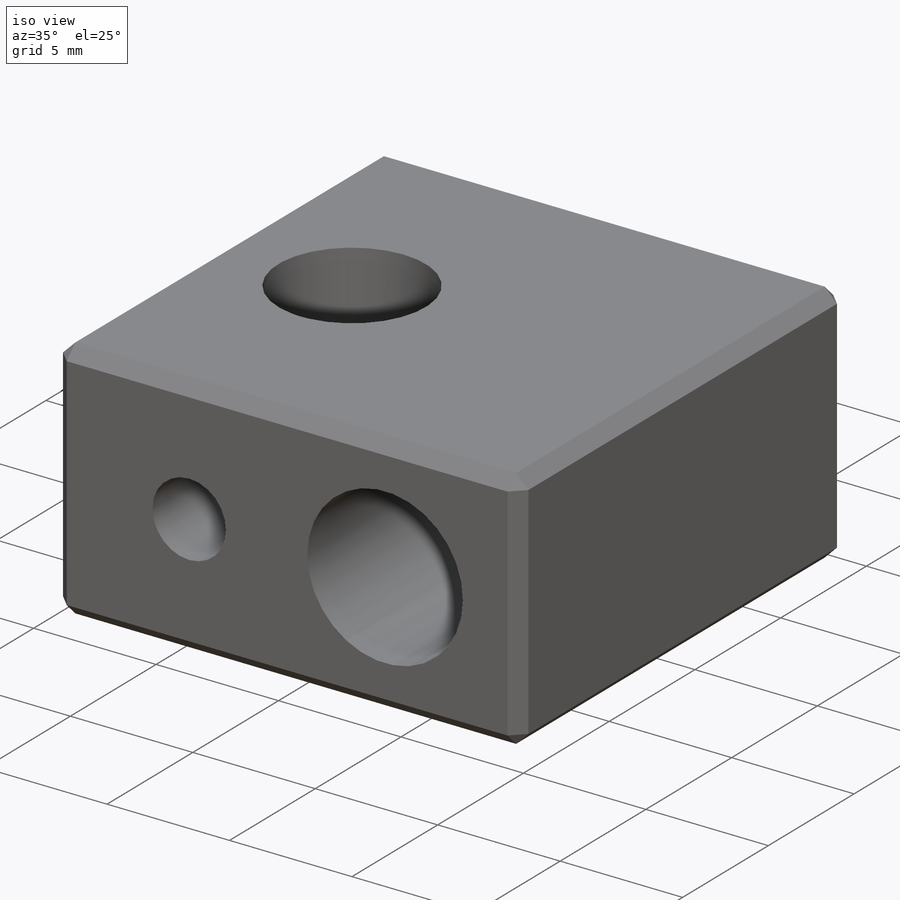
[diagram: iso view]
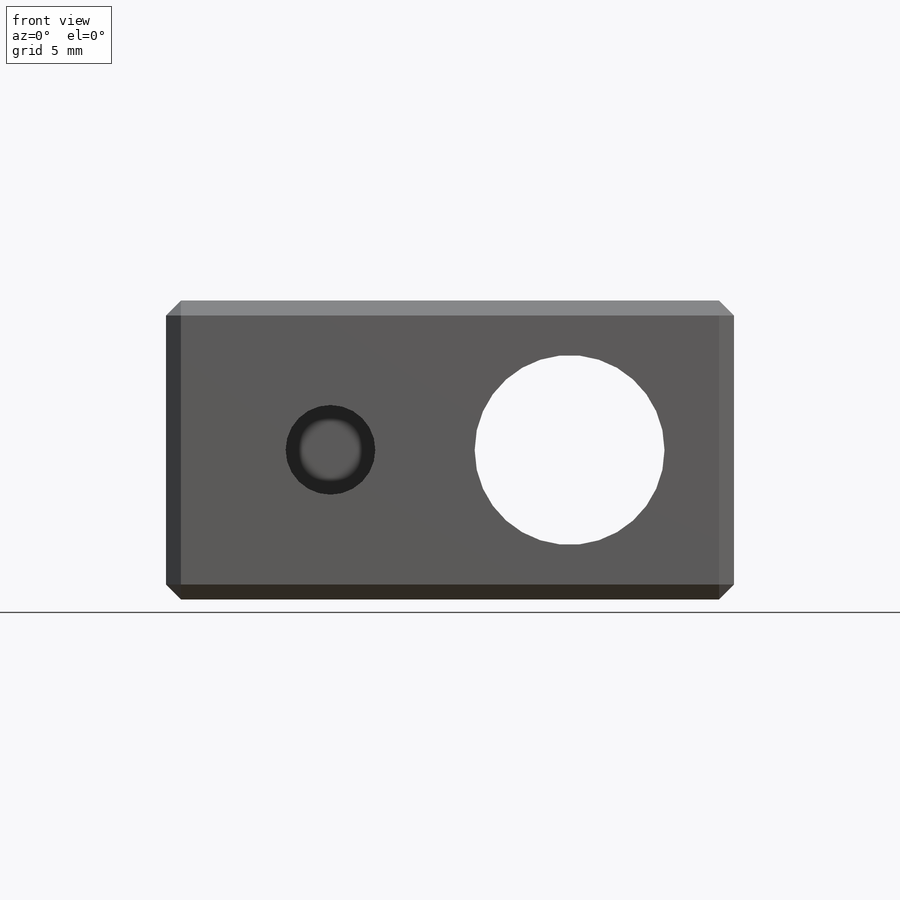
[diagram: front view]
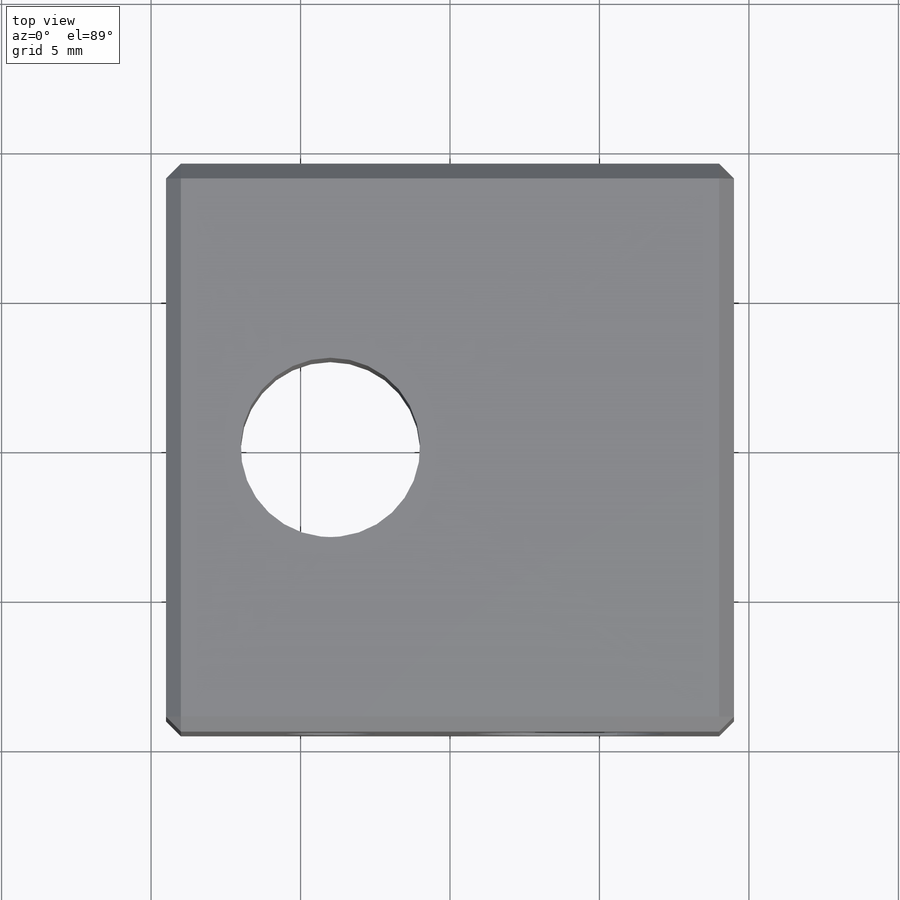
[diagram: top view]
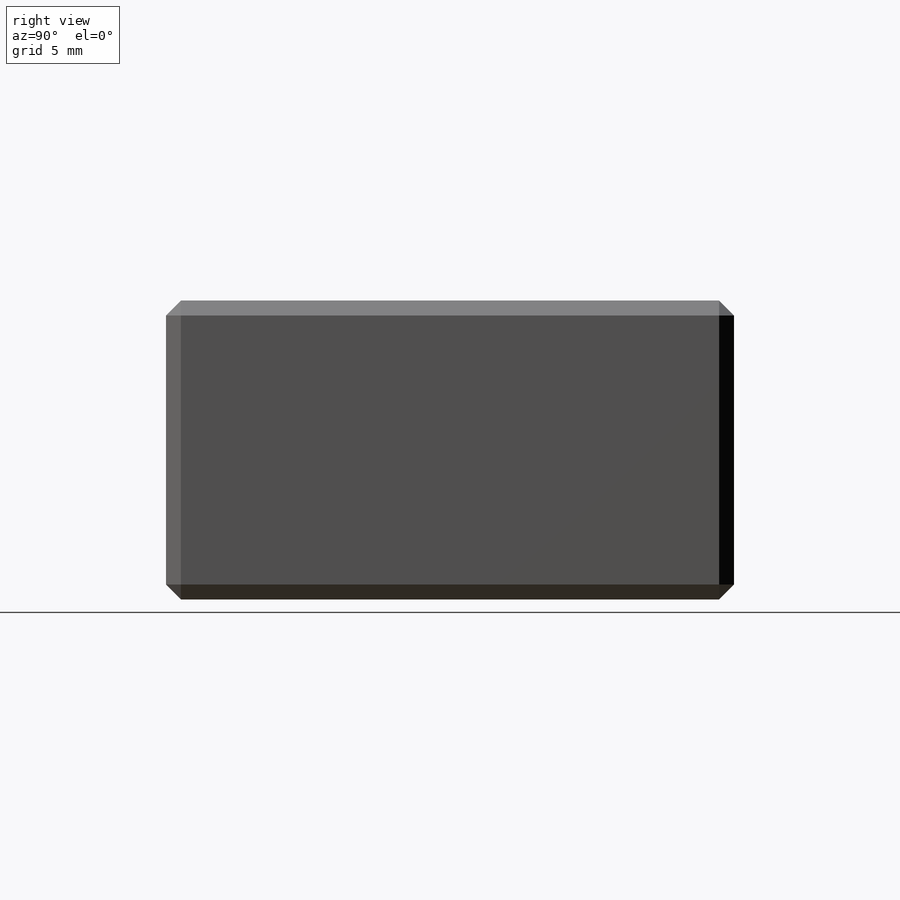
[diagram: right view]
SOLIDWORKS PART (.sldprt)
format: sldprt  version: not decoded by parser v0  size: 250,368 bytes
history: native  units: mm
features: sketch x5, cut_extrude x4, material x1, extrude x1, chamfer x1 (+11 scaffold rows collapsed)
feature tree (23):
  scaffold x11  (default folders/planes/origin — collapsed)
  material  "6061 Alloy"
  sketch  "Sketch2"  dims[c1.D3=6.0mm c1.D4=6.0mm c2.D3=6.0mm c2.D4=6.0mm c2.D1=19.0mm c2.D2=19.0mm c3.D4=9.6mm c3.D3=5.5mm c3.D5=10.0mm c4.D3=4.0mm]
  extrude  "Boss-Extrude1"  Depth=10mm
  sketch  "Sketch3"  dims[D1=9.6mm]
  cut_extrude  "Cut-Extrude1"  Depth=1.5mm
  sketch  "Sketch7"  dims[D1=6.35mm D2=5.0mm D3=4.0mm]
  cut_extrude  "Cut-Extrude5"  [1 undecoded]
  sketch  "Sketch12"  dims[c1.D1=3.0mm c1.D2=5.5mm c1.D3=10.0mm c2.D2=4.0mm]
  cut_extrude  "Cut-Extrude9"  [1 undecoded]
  sketch  "Sketch14"  dims[c1.D1=~1.25423mm c1.D3=3.0mm c2.D1=5.5mm c2.D2=5.0mm c3.D1=4.0mm c3.D2=~18.006551mm]
  cut_extrude  "Cut-Extrude11"  Depth=5mm
  chamfer  "Chamfer1"  Distance=0.5mm Angle=45deg
decode coverage: 9 of 11 modeling features carry decoded parameters
note: ~ marks probable driven/reference dimensions
note: 2 parameter values undecoded
note: suppression state not decoded; provenance and decode notes live in map.json
